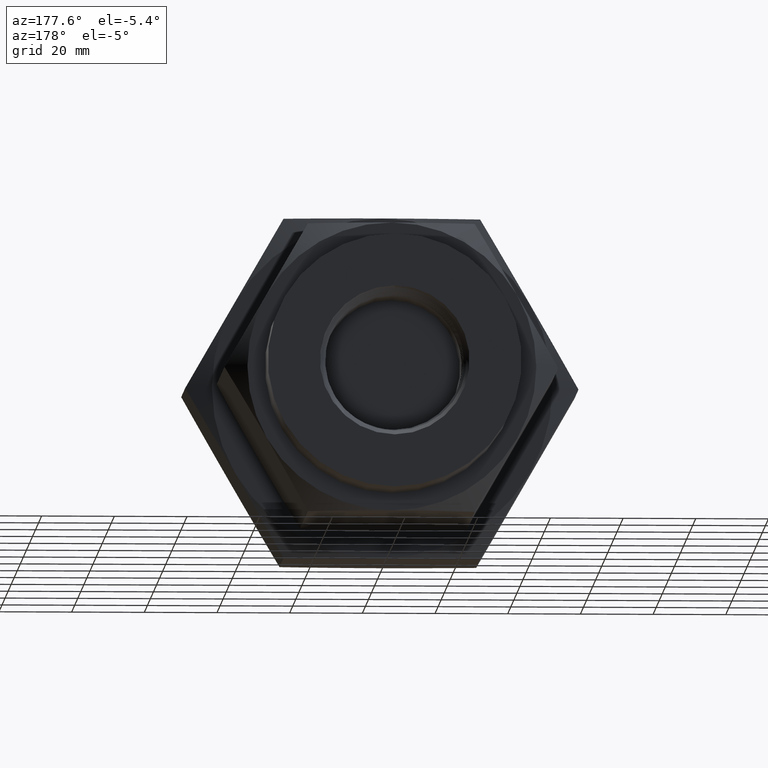
[diagram: clean part render]
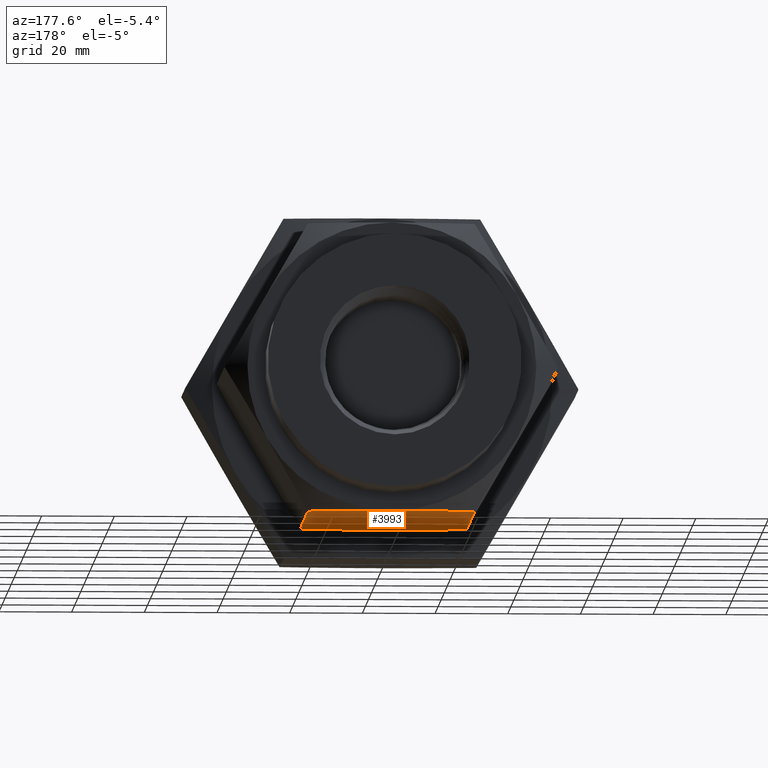
[diagram: same view with one face highlighted and labeled with its STEP entity id]
A machine part, auxiliary view. The second image highlights one B-rep face of the part: STEP entity #3993.
In plain terms, the highlighted planar face has unit normal (-0, 0, 1).
Its self-contained STEP definition (entity closure, byte-faithful):
#153 = CARTESIAN_POINT ( 'NONE',  ( -0.3045125553253284489, -1.053509100808678323, -1.565000000000000169 ) ) ;
#247 = EDGE_CURVE ( 'Defeatured_0_5+Defeatured_0_21+Defeatured_0_20+Defeatured_0_11', #2508, #7018, #7248, .T. ) ;
#271 = CARTESIAN_POINT ( 'NONE',  ( 0.3071270645104344776, -3.334179326830783108, -1.564999999999999281 ) ) ;
#343 = CARTESIAN_POINT ( 'NONE',  ( -0.7181939216858159725, -3.259962225997359297, -1.564999999999999725 ) ) ;
#353 = ORIENTED_EDGE ( 'NONE', *, *, #1582, .F. ) ;
#471 = CARTESIAN_POINT ( 'NONE',  ( -0.9035531712816127214, -1.180145420975027282, -1.564999999999999725 ) ) ;
#890 = VERTEX_POINT ( 'NONE', #5496 ) ;
#942 = CARTESIAN_POINT ( 'NONE',  ( 1.523752597256360181E-13, -1.040365258923458436, -1.564999999999999503 ) ) ;
#1052 = CARTESIAN_POINT ( 'NONE',  ( 0.6094289521518396757, -3.287880661820778982, -1.564999999999999281 ) ) ;
#1123 = CARTESIAN_POINT ( 'NONE',  ( -0.9035531712816127214, -3.210585096871889643, -1.564999999999999725 ) ) ;
#1175 = CARTESIAN_POINT ( 'NONE',  ( 1.523752597256360181E-13, -13.61734876248475423, -1.564999999999999503 ) ) ;
#1398 = B_SPLINE_CURVE_WITH_KNOTS ( 'NONE', 3,
 ( #7052, #1685, #3223, #8589, #4001, #9332, #4780, #153, #5556, #942 ),
 .UNSPECIFIED., .F., .F.,
 ( 4, 2, 2, 2, 4 ),
 ( 0.04205191014992670784, 0.04495544742204287542, 0.04785898469415904299, 0.05366605923839138509, 0.06528020832685606234 ),
 .UNSPECIFIED. ) ;
#1582 = EDGE_CURVE ( 'Defeatured_0_22+Defeatured_0_21+Defeatured_0_12+Defeatured_0_13', #9840, #890, #8918, .T. ) ;
#1685 = CARTESIAN_POINT ( 'NONE',  ( -0.8667827373933868484, -1.169530711023234248, -1.565000000000000169 ) ) ;
#1699 = CARTESIAN_POINT ( 'NONE',  ( 0.3071270645104353658, -1.056551191016134705, -1.565000000000000169 ) ) ;
#1737 = DIRECTION ( 'NONE',  ( 0.0000000000000000000, 1.000000000000000000, 0.0000000000000000000 ) ) ;
#1843 = CARTESIAN_POINT ( 'NONE',  ( 0.9035531712819169226, -3.210585096871889643, -1.564999999999999281 ) ) ;
#1910 = CARTESIAN_POINT ( 'NONE',  ( -0.8667827373933870705, -3.221199806823684231, -1.565000000000000169 ) ) ;
#1961 = DIRECTION ( 'NONE',  ( -1.000000000000000000, -0.0000000000000000000, -4.535175262218788572E-16 ) ) ;
#2061 = EDGE_CURVE ( 'Defeatured_0_12+Defeatured_0_21+Defeatured_0_11+Defeatured_0_22', #7018, #9840, #7568, .T. ) ;
#2077 = ORIENTED_EDGE ( 'NONE', *, *, #247, .F. ) ;
#2238 = FACE_OUTER_BOUND ( 'NONE', #5831, .T. ) ;
#2458 = CARTESIAN_POINT ( 'NONE',  ( 0.6094289521518400088, -1.102849856026138831, -1.564999999999999503 ) ) ;
#2478 = AXIS2_PLACEMENT_3D ( 'NONE', #1175, #6547, #1961 ) ;
#2508 = VERTEX_POINT ( 'NONE', #2938 ) ;
#2558 = CARTESIAN_POINT ( 'NONE',  ( 1.523752597256061045E-13, -3.350365258923458711, -1.564999999999999503 ) ) ;
#2883 = ORIENTED_EDGE ( 'NONE', *, *, #3183, .T. ) ;
#2938 = CARTESIAN_POINT ( 'NONE',  ( -0.9035531712816127214, -3.210585096871889643, -1.564999999999999725 ) ) ;
#3173 = ORIENTED_EDGE ( 'NONE', *, *, #6055, .T. ) ;
#3183 = EDGE_CURVE ( 'Defeatured_0_21+Defeatured_0_20+Defeatured_0_5+Defeatured_0_10', #2508, #5570, #3469, .T. ) ;
#3223 = CARTESIAN_POINT ( 'NONE',  ( -0.8298408535343847481, -1.159351964973835969, -1.565000000000000169 ) ) ;
#3234 = CARTESIAN_POINT ( 'NONE',  ( 0.9035531712819169226, -1.180145420975027282, -1.564999999999999281 ) ) ;
#3469 = LINE ( 'NONE', #6320, #9087 ) ;
#3993 = ADVANCED_FACE ( 'Defeatured_0_21', ( #2238 ), #6479, .F. ) ;
#4001 = CARTESIAN_POINT ( 'NONE',  ( -0.7181939216858157504, -1.130768291849557627, -1.564999999999999725 ) ) ;
#4182 = CARTESIAN_POINT ( 'NONE',  ( -0.1528140639889798980, -3.350365258923459155, -1.565000000000000169 ) ) ;
#4761 = CARTESIAN_POINT ( 'NONE',  ( 1.523752597256360181E-13, -1.040365258923458436, -1.564999999999999503 ) ) ;
#4780 = CARTESIAN_POINT ( 'NONE',  ( -0.5306385567798611591, -1.089975962029831713, -1.565000000000000169 ) ) ;
#4848 = ORIENTED_EDGE ( 'NONE', *, *, #7529, .T. ) ;
#4904 = CARTESIAN_POINT ( 'NONE',  ( 0.1532791009017162309, -3.347105788063061471, -1.564999999999999281 ) ) ;
#4976 = CARTESIAN_POINT ( 'NONE',  ( -0.6057805361446694237, -3.285849518748867215, -1.565000000000000169 ) ) ;
#5496 = CARTESIAN_POINT ( 'NONE',  ( 0.9035531712819169226, -1.180145420975027282, -1.564999999999999281 ) ) ;
#5531 = CARTESIAN_POINT ( 'NONE',  ( 0.07646098121710055706, -1.040365258923458436, -1.564999999999999281 ) ) ;
#5556 = CARTESIAN_POINT ( 'NONE',  ( -0.1528140639889795926, -1.040365258923458436, -1.564999999999999503 ) ) ;
#5570 = VERTEX_POINT ( 'NONE', #471 ) ;
#5675 = CARTESIAN_POINT ( 'NONE',  ( 0.3832309710771529265, -3.324607656437669867, -1.564999999999999281 ) ) ;
#5748 = CARTESIAN_POINT ( 'NONE',  ( -0.7555709819760999535, -3.250754258062410695, -1.565000000000000169 ) ) ;
#5831 = EDGE_LOOP ( 'NONE', ( #2883, #3173, #4848, #353, #7294, #2077 ) ) ;
#6055 = EDGE_CURVE ( 'Defeatured_0_21+Defeatured_0_10+Defeatured_0_20+Defeatured_0_13', #5570, #6609, #1398, .T. ) ;
#6284 = CARTESIAN_POINT ( 'NONE',  ( 0.1532791009017170358, -1.043624729783855898, -1.564999999999999281 ) ) ;
#6320 = CARTESIAN_POINT ( 'NONE',  ( -0.9035531712816127214, -13.61734876248475423, -1.564999999999999725 ) ) ;
#6425 = CARTESIAN_POINT ( 'NONE',  ( 0.7574239598413916585, -3.252768966652715754, -1.564999999999998836 ) ) ;
#6429 = CARTESIAN_POINT ( 'NONE',  ( -0.3045125553253287265, -3.337221417038239046, -1.565000000000000391 ) ) ;
#6479 = PLANE ( 'NONE',  #2478 ) ;
#6547 = DIRECTION ( 'NONE',  ( -4.535175262218788572E-16, 0.0000000000000000000, 1.000000000000000000 ) ) ;
#6609 = VERTEX_POINT ( 'NONE', #6973 ) ;
#6973 = CARTESIAN_POINT ( 'NONE',  ( 1.523752597256360181E-13, -1.040365258923458436, -1.564999999999999503 ) ) ;
#7018 = VERTEX_POINT ( 'NONE', #7265 ) ;
#7052 = CARTESIAN_POINT ( 'NONE',  ( -0.9035531712816127214, -1.180145420975027282, -1.564999999999999725 ) ) ;
#7062 = CARTESIAN_POINT ( 'NONE',  ( 0.3832309710771530931, -1.066122861409246614, -1.564999999999999281 ) ) ;
#7248 = B_SPLINE_CURVE_WITH_KNOTS ( 'NONE', 3,
 ( #1123, #1910, #7267, #5748, #343, #4976, #9529, #6429, #4182, #8786 ),
 .UNSPECIFIED., .F., .F.,
 ( 4, 2, 2, 2, 4 ),
 ( 0.04205191014992672172, 0.04495544742204288929, 0.04785898469415906381, 0.05366605923839139897, 0.06528020832685607622 ),
 .UNSPECIFIED. ) ;
#7265 = CARTESIAN_POINT ( 'NONE',  ( 1.523752597256061045E-13, -3.350365258923458711, -1.564999999999999503 ) ) ;
#7267 = CARTESIAN_POINT ( 'NONE',  ( -0.8298408535343844150, -3.231378552873080956, -1.564999999999999725 ) ) ;
#7294 = ORIENTED_EDGE ( 'NONE', *, *, #2061, .F. ) ;
#7529 = EDGE_CURVE ( 'Defeatured_0_21+Defeatured_0_13+Defeatured_0_10+Defeatured_0_22', #6609, #890, #8290, .T. ) ;
#7568 = B_SPLINE_CURVE_WITH_KNOTS ( 'NONE', 3,
 ( #2558, #7926, #4904, #271, #5675, #1052, #6425, #1843 ),
 .UNSPECIFIED., .F., .F.,
 ( 4, 2, 2, 4 ),
 ( 0.06528020832685607622, 0.07109138311091972584, 0.07690255789498338934, 0.08852490746311070247 ),
 .UNSPECIFIED. ) ;
#7777 = CARTESIAN_POINT ( 'NONE',  ( 0.9035531712819169226, -13.61734876248475423, -1.564999999999999281 ) ) ;
#7826 = CARTESIAN_POINT ( 'NONE',  ( 0.7574239598413918806, -1.137961551194199838, -1.564999999999999059 ) ) ;
#7926 = CARTESIAN_POINT ( 'NONE',  ( 0.07646098121710045992, -3.350365258923458711, -1.564999999999999503 ) ) ;
#7947 = CARTESIAN_POINT ( 'NONE',  ( 0.9035531712819169226, -3.210585096871889643, -1.564999999999999281 ) ) ;
#8290 = B_SPLINE_CURVE_WITH_KNOTS ( 'NONE', 3,
 ( #4761, #5531, #6284, #1699, #7062, #2458, #7826, #3234 ),
 .UNSPECIFIED., .F., .F.,
 ( 4, 2, 2, 4 ),
 ( 0.06528020832685606234, 0.07109138311091972584, 0.07690255789498337546, 0.08852490746311068859 ),
 .UNSPECIFIED. ) ;
#8548 = DIRECTION ( 'NONE',  ( 0.0000000000000000000, 1.000000000000000000, 0.0000000000000000000 ) ) ;
#8589 = CARTESIAN_POINT ( 'NONE',  ( -0.7555709819760997314, -1.139976259784506452, -1.564999999999999503 ) ) ;
#8786 = CARTESIAN_POINT ( 'NONE',  ( 1.523752597256061045E-13, -3.350365258923458711, -1.564999999999999503 ) ) ;
#8918 = LINE ( 'NONE', #7777, #9137 ) ;
#9087 = VECTOR ( 'NONE', #1737, 39.37007874015748143 ) ;
#9137 = VECTOR ( 'NONE', #8548, 39.37007874015748143 ) ;
#9332 = CARTESIAN_POINT ( 'NONE',  ( -0.6057805361446692016, -1.104880999098049266, -1.564999999999999725 ) ) ;
#9529 = CARTESIAN_POINT ( 'NONE',  ( -0.5306385567798616032, -3.300754555817085656, -1.564999999999999725 ) ) ;
#9840 = VERTEX_POINT ( 'NONE', #7947 ) ;